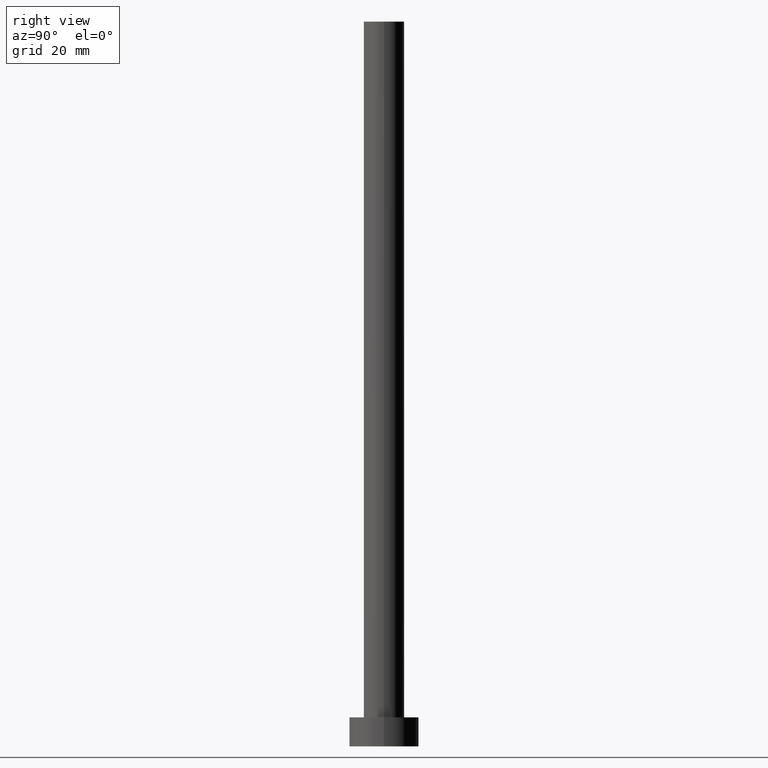
[diagram: clean part render]
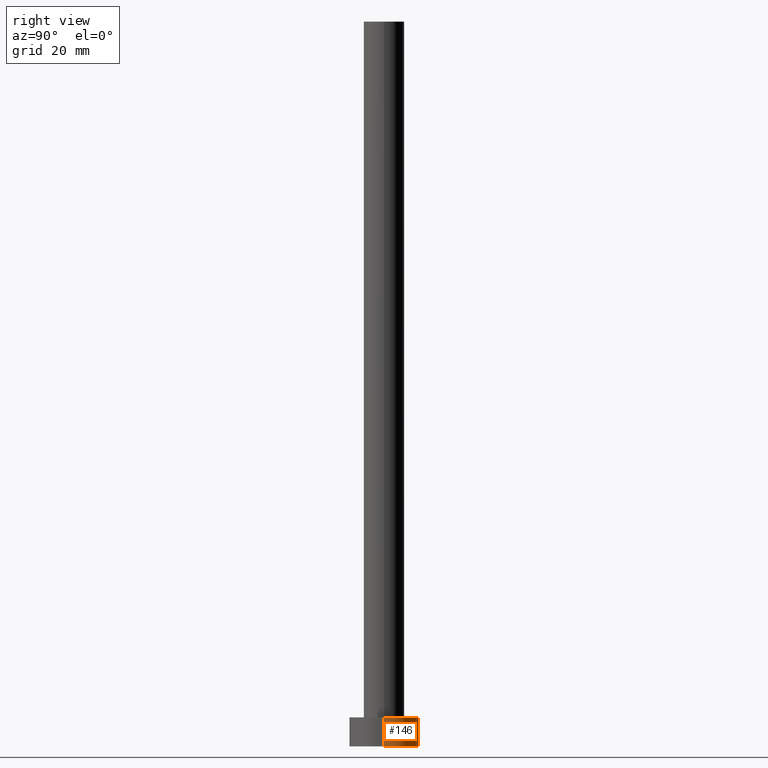
[diagram: same view with one face highlighted and labeled with its STEP entity id]
A machine part, right view. The second image highlights one B-rep face of the part: STEP entity #146.
In plain terms, the highlighted cylindrical surface (edge-blend (fillet) strip) has radius 6 mm, axis along (-0, -0, -1).
Its self-contained STEP definition (entity closure, byte-faithful):
#1 = AXIS2_PLACEMENT_3D ( 'NONE', #41, #119, #62 ) ;
#10 = ORIENTED_EDGE ( 'NONE', *, *, #29, .F. ) ;
#12 = AXIS2_PLACEMENT_3D ( 'NONE', #127, #220, #113 ) ;
#29 = EDGE_CURVE ( 'NONE', #155, #213, #203, .T. ) ;
#30 = ORIENTED_EDGE ( 'NONE', *, *, #101, .T. ) ;
#35 = CYLINDRICAL_SURFACE ( 'NONE', #1, 6.000000000000000888 ) ;
#37 = CARTESIAN_POINT ( 'NONE',  ( 6.000000000000000888, 7.347880794884120722E-16, 0.000000000000000000 ) ) ;
#38 = DIRECTION ( 'NONE',  ( -0.000000000000000000, -0.000000000000000000, -1.000000000000000000 ) ) ;
#41 = CARTESIAN_POINT ( 'NONE',  ( 0.000000000000000000, 0.000000000000000000, 5.000000000000000000 ) ) ;
#47 = CIRCLE ( 'NONE', #231, 6.000000000000000888 ) ;
#49 = ORIENTED_EDGE ( 'NONE', *, *, #137, .F. ) ;
#58 = DIRECTION ( 'NONE',  ( -0.000000000000000000, -0.000000000000000000, -1.000000000000000000 ) ) ;
#62 = DIRECTION ( 'NONE',  ( -1.000000000000000000, 0.000000000000000000, 0.000000000000000000 ) ) ;
#77 = FACE_OUTER_BOUND ( 'NONE', #111, .T. ) ;
#96 = CARTESIAN_POINT ( 'NONE',  ( 0.000000000000000000, 0.000000000000000000, 0.000000000000000000 ) ) ;
#101 = EDGE_CURVE ( 'NONE', #155, #182, #227, .T. ) ;
#111 = EDGE_LOOP ( 'NONE', ( #10, #30, #246, #49 ) ) ;
#113 = DIRECTION ( 'NONE',  ( 1.000000000000000000, 0.000000000000000000, 0.000000000000000000 ) ) ;
#115 = LINE ( 'NONE', #141, #221 ) ;
#116 = CARTESIAN_POINT ( 'NONE',  ( -6.000000000000000888, 0.000000000000000000, 5.000000000000000000 ) ) ;
#119 = DIRECTION ( 'NONE',  ( -0.000000000000000000, -0.000000000000000000, -1.000000000000000000 ) ) ;
#127 = CARTESIAN_POINT ( 'NONE',  ( 0.000000000000000000, 0.000000000000000000, 5.000000000000000000 ) ) ;
#137 = EDGE_CURVE ( 'NONE', #213, #204, #115, .T. ) ;
#141 = CARTESIAN_POINT ( 'NONE',  ( -6.000000000000000888, 0.000000000000000000, 5.000000000000000000 ) ) ;
#146 = ADVANCED_FACE ( 'NONE', ( #77 ), #35, .T. ) ;
#155 = VERTEX_POINT ( 'NONE', #228 ) ;
#162 = VECTOR ( 'NONE', #38, 1000.000000000000000 ) ;
#178 = EDGE_CURVE ( 'NONE', #182, #204, #47, .T. ) ;
#182 = VERTEX_POINT ( 'NONE', #37 ) ;
#190 = CARTESIAN_POINT ( 'NONE',  ( 6.000000000000000888, 7.347880794884120722E-16, 5.000000000000000000 ) ) ;
#203 = CIRCLE ( 'NONE', #12, 6.000000000000000888 ) ;
#204 = VERTEX_POINT ( 'NONE', #230 ) ;
#212 = DIRECTION ( 'NONE',  ( 0.000000000000000000, 0.000000000000000000, 1.000000000000000000 ) ) ;
#213 = VERTEX_POINT ( 'NONE', #116 ) ;
#220 = DIRECTION ( 'NONE',  ( 0.000000000000000000, 0.000000000000000000, 1.000000000000000000 ) ) ;
#221 = VECTOR ( 'NONE', #58, 1000.000000000000000 ) ;
#227 = LINE ( 'NONE', #190, #162 ) ;
#228 = CARTESIAN_POINT ( 'NONE',  ( 6.000000000000000888, 7.347880794884120722E-16, 5.000000000000000000 ) ) ;
#230 = CARTESIAN_POINT ( 'NONE',  ( -6.000000000000000888, 0.000000000000000000, 0.000000000000000000 ) ) ;
#231 = AXIS2_PLACEMENT_3D ( 'NONE', #96, #212, #247 ) ;
#246 = ORIENTED_EDGE ( 'NONE', *, *, #178, .T. ) ;
#247 = DIRECTION ( 'NONE',  ( 1.000000000000000000, 0.000000000000000000, 0.000000000000000000 ) ) ;